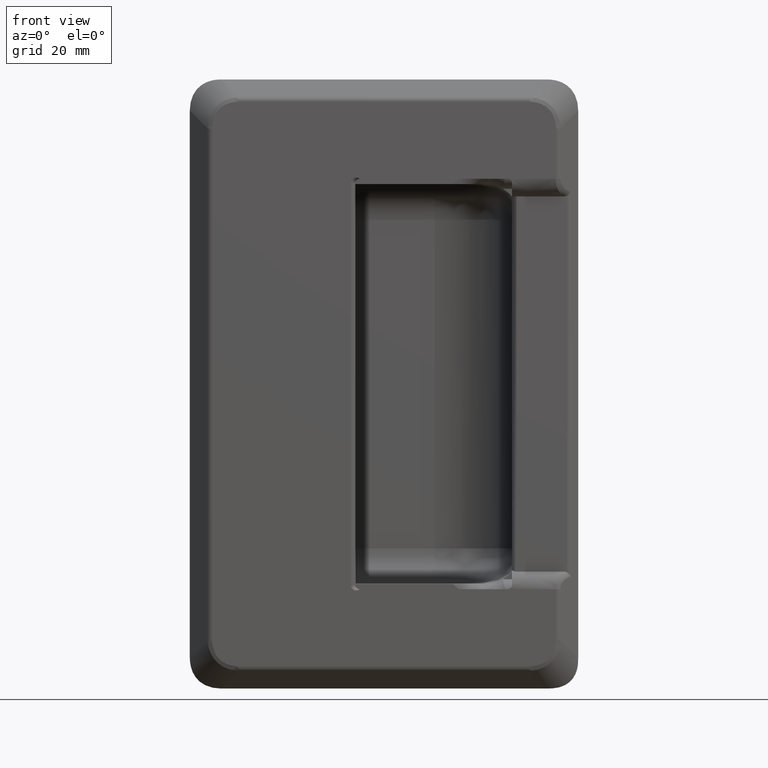
[diagram: clean part render]
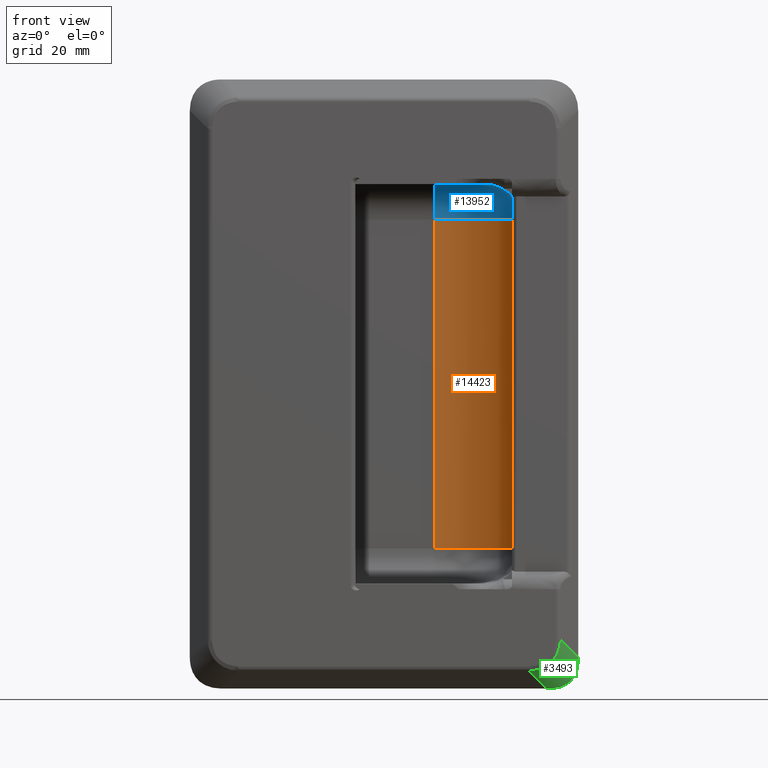
[diagram: same view with three faces highlighted in distinct colors, each labeled with its STEP entity id]
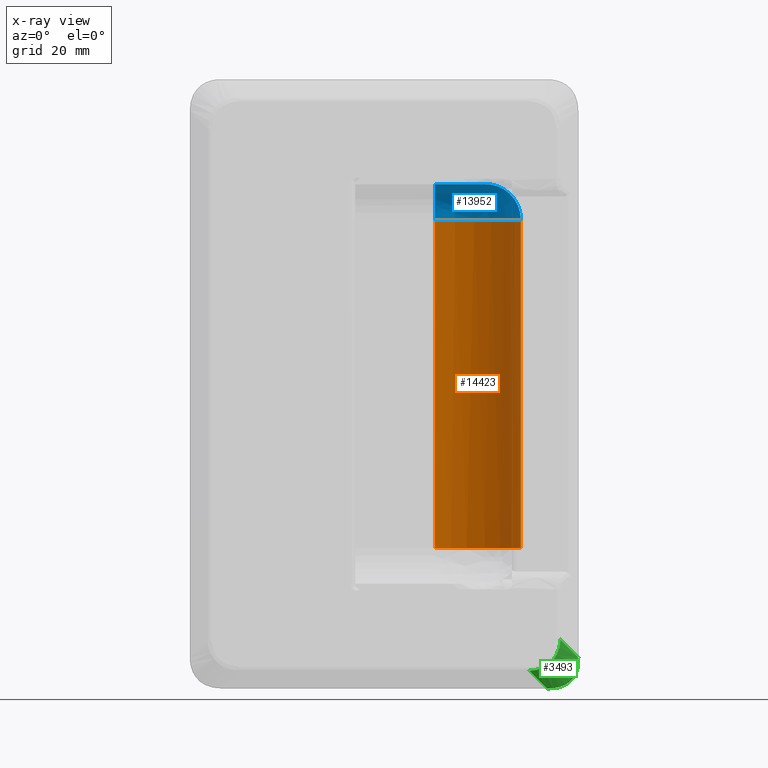
[diagram: x-ray of the same camera — body ghosted, the three highlighted faces saturated]
A machine part, front view with three faces highlighted in distinct colors.
The next image is the same camera in x-ray (body ghosted, the three faces saturated) — at least one of them is partly hidden behind the body in this view.
Their STEP definitions:

[orange] entity #14423 — the highlighted face is a freeform B-spline surface patch.
#13851=CARTESIAN_POINT('',(30.999999999512951,6.000000000162540,37.249999999966853));
#13852=VERTEX_POINT('',#13851);
#13900=CARTESIAN_POINT('',(11.499999999512960,25.500000000162501,37.249999999956891));
#13901=VERTEX_POINT('',#13900);
#13918=CARTESIAN_POINT('',(11.499999999512960,25.500000000162501,37.249999999956891));
#13919=CARTESIAN_POINT('',(13.215051111177200,25.500532260888910,37.249999999956863));
#13920=CARTESIAN_POINT('',(15.886937039796640,25.145123610949089,37.249999999957232));
#13921=CARTESIAN_POINT('',(19.245414878732671,23.966419696263230,37.249999999957488));
#13922=CARTESIAN_POINT('',(21.587298253000469,22.751375639999690,37.249999999958654));
#13923=CARTESIAN_POINT('',(23.555900358392091,21.382881773687441,37.249999999958511));
#13924=CARTESIAN_POINT('',(25.560853274295429,19.610141710692272,37.249999999960806));
#13925=CARTESIAN_POINT('',(27.216748572274309,17.654376201048152,37.249999999960593));
#13926=CARTESIAN_POINT('',(28.726375527720808,15.254048126577500,37.249999999962093));
#13927=CARTESIAN_POINT('',(29.866744121700059,12.784558390685129,37.249999999963457));
#13928=CARTESIAN_POINT('',(30.772046110546249,9.589440714130939,37.249999999965027));
#13929=CARTESIAN_POINT('',(31.000175508711230,7.276277328261594,37.249999999966157));
#13930=CARTESIAN_POINT('',(30.999999999512951,6.000000000162540,37.249999999966853));
#13931=B_SPLINE_CURVE_WITH_KNOTS('',3,(#13918,#13919,#13920,#13921,#13922,#13923,#13924,#13925,#13926,#13927,#13928,#13929,#13930),.UNSPECIFIED.,.F.,.U.,(4,1,1,1,1,1,1,1,1,1,4),(0.000000094483095,5.144966899626336,8.016596680881811,10.648928653391950,13.041967736172010,15.195695518127931,18.665479991663940,20.699551429892370,23.690841439743888,26.801785137441200,30.630576422912519),.UNSPECIFIED.);
#13932=EDGE_CURVE('',#13901,#13852,#13931,.T.);
#14219=CARTESIAN_POINT('',(11.499999999513200,25.500000000162551,-37.250000000208800));
#14220=VERTEX_POINT('',#14219);
#14314=CARTESIAN_POINT('',(30.999999999513200,6.000000000162540,-37.250000000191648));
#14315=VERTEX_POINT('',#14314);
#14332=CARTESIAN_POINT('',(30.999999999513200,6.000000000162540,-37.250000000191648));
#14333=CARTESIAN_POINT('',(31.000061019447930,7.036969885404043,-37.250000000191633));
#14334=CARTESIAN_POINT('',(30.827842336896001,9.190672010200057,-37.250000000191861));
#14335=CARTESIAN_POINT('',(30.088635912227929,12.141835860209939,-37.250000000192472));
#14336=CARTESIAN_POINT('',(28.970844358318459,14.794099823280440,-37.250000000193488));
#14337=CARTESIAN_POINT('',(27.486054880313620,17.306279979185899,-37.250000000194767));
#14338=CARTESIAN_POINT('',(25.548314747292359,19.652754759047159,-37.250000000196508));
#14339=CARTESIAN_POINT('',(23.282588880261329,21.619183451245160,-37.250000000198440));
#14340=CARTESIAN_POINT('',(20.765077617090238,23.246140343535380,-37.250000000200707));
#14341=CARTESIAN_POINT('',(18.133004793933310,24.422511376908162,-37.250000000203009));
#14342=CARTESIAN_POINT('',(14.929910525863360,25.287765758187799,-37.250000000205723));
#14343=CARTESIAN_POINT('',(12.776274241008171,25.500162465162280,-37.250000000207770));
#14344=CARTESIAN_POINT('',(11.499999999513200,25.500000000162551,-37.250000000208800));
#14345=B_SPLINE_CURVE_WITH_KNOTS('',3,(#14332,#14333,#14334,#14335,#14336,#14337,#14338,#14339,#14340,#14341,#14342,#14343,#14344),.UNSPECIFIED.,.F.,.U.,(4,1,1,1,1,1,1,1,1,1,4),(0.000000094485959,3.110910971584339,6.461134675721851,9.093459613997609,11.725799179651631,15.195695518127170,18.186889637144340,20.699551429891621,24.169444944374241,26.801785137441030,30.630576422912611),.UNSPECIFIED.);
#14346=EDGE_CURVE('',#14315,#14220,#14345,.T.);
#14395=CARTESIAN_POINT('',(10.989549507509670,25.493317837185899,-39.112500000213188));
#14396=CARTESIAN_POINT('',(10.989549507509420,25.493317837185899,39.159062499971299));
#14397=CARTESIAN_POINT('',(32.462203610330228,26.055599073404643,-39.112500000213124));
#14398=CARTESIAN_POINT('',(32.462203610329972,26.055599073404643,39.159062499971370));
#14399=CARTESIAN_POINT('',(30.951727347438986,4.628758525455845,-39.112500000213117));
#14400=CARTESIAN_POINT('',(30.951727347438748,4.628758525455845,39.159062499971370));
#14408=(BOUNDED_SURFACE()B_SPLINE_SURFACE(1,2,((#14395,#14397,#14399),(#14396,#14398,#14400)),.UNSPECIFIED.,.F.,.F.,.U.)B_SPLINE_SURFACE_WITH_KNOTS((2,2),(3,3),(0.0,78.271562500184487),(0.0,34.537275709723097),.UNSPECIFIED.)GEOMETRIC_REPRESENTATION_ITEM()RATIONAL_B_SPLINE_SURFACE(((1.0,0.670944223154768,0.996392648609106),(1.0,0.670944223154768,0.996392648609106)))REPRESENTATION_ITEM('')SURFACE());
#14409=CARTESIAN_POINT('',(11.499999999512960,25.500000000162501,37.249999999956891));
#14410=CARTESIAN_POINT('',(11.499999999513200,25.500000000162551,-37.250000000208800));
#14411=QUASI_UNIFORM_CURVE('',1,(#14409,#14410),.UNSPECIFIED.,.F.,.U.);
#14412=EDGE_CURVE('',#13901,#14220,#14411,.T.);
#14413=ORIENTED_EDGE('',*,*,#14412,.T.);
#14414=ORIENTED_EDGE('',*,*,#14346,.F.);
#14415=CARTESIAN_POINT('',(30.999999999513200,6.000000000162540,-37.250000000191648));
#14416=CARTESIAN_POINT('',(30.999999999512951,6.000000000162540,37.249999999966853));
#14417=QUASI_UNIFORM_CURVE('',1,(#14415,#14416),.UNSPECIFIED.,.F.,.U.);
#14418=EDGE_CURVE('',#14315,#13852,#14417,.T.);
#14419=ORIENTED_EDGE('',*,*,#14418,.T.);
#14420=ORIENTED_EDGE('',*,*,#13932,.F.);
#14421=EDGE_LOOP('',(#14413,#14414,#14419,#14420));
#14422=FACE_OUTER_BOUND('',#14421,.T.);
#14423=ADVANCED_FACE('',(#14422),#14408,.F.);

[blue] entity #13952 — the highlighted face is a freeform B-spline surface patch.
#13851=CARTESIAN_POINT('',(30.999999999512951,6.000000000162540,37.249999999966853));
#13852=VERTEX_POINT('',#13851);
#13859=CARTESIAN_POINT('',(22.999999999506102,6.000000000162540,45.249999999966803));
#13860=VERTEX_POINT('',#13859);
#13866=CARTESIAN_POINT('',(30.999999999512951,6.000000000162540,37.249999999966853));
#13867=CARTESIAN_POINT('',(31.000229323764071,6.000000000162531,37.937245108891382));
#13868=CARTESIAN_POINT('',(30.855670902235829,6.000000000162542,39.049764316514192));
#13869=CARTESIAN_POINT('',(30.312190363052711,6.000000000162541,40.598659975231392));
#13870=CARTESIAN_POINT('',(29.680079333954740,6.000000000162546,41.714490686730741));
#13871=CARTESIAN_POINT('',(28.819600897224799,6.000000000162505,42.789580024674343));
#13872=CARTESIAN_POINT('',(27.771988135243959,6.000000000162562,43.739191915417983));
#13873=CARTESIAN_POINT('',(26.468994337000940,6.000000000162519,44.509306836457903));
#13874=CARTESIAN_POINT('',(24.865188698104969,6.000000000162454,45.094249609779908));
#13875=CARTESIAN_POINT('',(23.719977295720462,6.000000000162667,45.250276227452510));
#13876=CARTESIAN_POINT('',(22.999999999506102,6.000000000162540,45.249999999966803));
#13877=B_SPLINE_CURVE_WITH_KNOTS('',3,(#13866,#13867,#13868,#13869,#13870,#13871,#13872,#13873,#13874,#13875,#13876),.UNSPECIFIED.,.F.,.U.,(4,1,1,1,1,1,1,1,4),(0.000000151694753,2.061663626102833,3.337967261619223,4.908777993941677,5.890541180441020,7.461291909608087,9.130305443472430,10.406610239708870,12.566449463013820),.UNSPECIFIED.);
#13878=EDGE_CURVE('',#13852,#13860,#13877,.T.);
#13883=CARTESIAN_POINT('',(10.739006045317131,16.917212021379765,45.230634898355333));
#13884=CARTESIAN_POINT('',(23.292246460289761,17.792246786914138,45.230634898366120));
#13885=CARTESIAN_POINT('',(22.417212041759147,5.239006347753305,45.230634898365381));
#13886=CARTESIAN_POINT('',(10.100891767193559,26.071593379717143,45.870297568051434));
#13887=CARTESIAN_POINT('',(33.180368167893619,27.680368767851597,45.870297568071230));
#13888=CARTESIAN_POINT('',(31.571593417735095,4.600892322680860,45.870297568069866));
#13889=CARTESIAN_POINT('',(10.145372071716876,25.433479354644714,36.693702981259534));
#13890=CARTESIAN_POINT('',(32.491108140789024,26.991108721686203,36.693702981278705));
#13891=CARTESIAN_POINT('',(30.933479391440986,4.645372609557187,36.693702981277376));
#13899=(BOUNDED_SURFACE()B_SPLINE_SURFACE(2,2,((#13883,#13886,#13889),(#13884,#13887,#13890),(#13885,#13888,#13891)),.UNSPECIFIED.,.F.,.F.,.U.)B_SPLINE_SURFACE_WITH_KNOTS((3,3),(3,3),(0.0,35.501002358308313),(0.0,14.578991912918500),.UNSPECIFIED.)GEOMETRIC_REPRESENTATION_ITEM()RATIONAL_B_SPLINE_SURFACE(((0.845035852041583,0.554533604994714,0.845035841399394),(0.554533604994714,0.363898784087685,0.554533598011044),(0.845035841399394,0.554533598011044,0.845035830757205)))REPRESENTATION_ITEM('')SURFACE());
#13900=CARTESIAN_POINT('',(11.499999999512960,25.500000000162501,37.249999999956891));
#13901=VERTEX_POINT('',#13900);
#13902=CARTESIAN_POINT('',(11.499999999506100,17.500000000162501,45.249999999956891));
#13903=VERTEX_POINT('',#13902);
#13904=CARTESIAN_POINT('',(11.499999999512960,25.500000000162501,37.249999999956891));
#13905=CARTESIAN_POINT('',(11.499999999512390,25.500185659052342,37.937239683420472));
#13906=CARTESIAN_POINT('',(11.499999999511401,25.355704336399690,39.049764798181300));
#13907=CARTESIAN_POINT('',(11.499999999510081,24.801317742680869,40.629645785753901));
#13908=CARTESIAN_POINT('',(11.499999999508811,23.981738042896030,42.056141455347031));
#13909=CARTESIAN_POINT('',(11.499999999507750,22.769958719544910,43.360660578074288));
#13910=CARTESIAN_POINT('',(11.499999999506970,21.462085181021859,44.246007338785581));
#13911=CARTESIAN_POINT('',(11.499999999506400,20.176214886521919,44.825451573234083));
#13912=CARTESIAN_POINT('',(11.499999999506359,18.907165676177922,45.168279202983548));
#13913=CARTESIAN_POINT('',(11.499999999505850,17.958146809346040,45.250032956132593));
#13914=CARTESIAN_POINT('',(11.499999999506100,17.500000000162501,45.249999999956891));
#13915=B_SPLINE_CURVE_WITH_KNOTS('',3,(#13904,#13905,#13906,#13907,#13908,#13909,#13910,#13911,#13912,#13913,#13914),.UNSPECIFIED.,.F.,.U.,(4,1,1,1,1,1,1,1,4),(0.000000151738785,2.061663626136397,3.337967261646000,5.006977195465556,6.970450242842445,8.639430360071879,9.719368839912487,11.192000324788561,12.566449463008130),.UNSPECIFIED.);
#13916=EDGE_CURVE('',#13901,#13903,#13915,.T.);
#13917=ORIENTED_EDGE('',*,*,#13916,.F.);
#13918=CARTESIAN_POINT('',(11.499999999512960,25.500000000162501,37.249999999956891));
#13919=CARTESIAN_POINT('',(13.215051111177200,25.500532260888910,37.249999999956863));
#13920=CARTESIAN_POINT('',(15.886937039796640,25.145123610949089,37.249999999957232));
#13921=CARTESIAN_POINT('',(19.245414878732671,23.966419696263230,37.249999999957488));
#13922=CARTESIAN_POINT('',(21.587298253000469,22.751375639999690,37.249999999958654));
#13923=CARTESIAN_POINT('',(23.555900358392091,21.382881773687441,37.249999999958511));
#13924=CARTESIAN_POINT('',(25.560853274295429,19.610141710692272,37.249999999960806));
#13925=CARTESIAN_POINT('',(27.216748572274309,17.654376201048152,37.249999999960593));
#13926=CARTESIAN_POINT('',(28.726375527720808,15.254048126577500,37.249999999962093));
#13927=CARTESIAN_POINT('',(29.866744121700059,12.784558390685129,37.249999999963457));
#13928=CARTESIAN_POINT('',(30.772046110546249,9.589440714130939,37.249999999965027));
#13929=CARTESIAN_POINT('',(31.000175508711230,7.276277328261594,37.249999999966157));
#13930=CARTESIAN_POINT('',(30.999999999512951,6.000000000162540,37.249999999966853));
#13931=B_SPLINE_CURVE_WITH_KNOTS('',3,(#13918,#13919,#13920,#13921,#13922,#13923,#13924,#13925,#13926,#13927,#13928,#13929,#13930),.UNSPECIFIED.,.F.,.U.,(4,1,1,1,1,1,1,1,1,1,4),(0.000000094483095,5.144966899626336,8.016596680881811,10.648928653391950,13.041967736172010,15.195695518127931,18.665479991663940,20.699551429892370,23.690841439743888,26.801785137441200,30.630576422912519),.UNSPECIFIED.);
#13932=EDGE_CURVE('',#13901,#13852,#13931,.T.);
#13933=ORIENTED_EDGE('',*,*,#13932,.T.);
#13934=ORIENTED_EDGE('',*,*,#13878,.T.);
#13935=CARTESIAN_POINT('',(22.999999999506102,6.000000000162540,45.249999999966803));
#13936=CARTESIAN_POINT('',(23.000228150682918,6.940855170930827,45.249999999966718));
#13937=CARTESIAN_POINT('',(22.808402298519791,8.493129996954124,45.249999999966732));
#13938=CARTESIAN_POINT('',(22.175026847157500,10.371283884538149,45.249999999966043));
#13939=CARTESIAN_POINT('',(21.442652574393399,11.848724845196511,45.249999999965453));
#13940=CARTESIAN_POINT('',(20.331574038464382,13.490118784505491,45.249999999964359));
#13941=CARTESIAN_POINT('',(18.703261811415050,15.078934584297160,45.249999999963322));
#13942=CARTESIAN_POINT('',(16.820004151692640,16.255142719635010,45.249999999961091));
#13943=CARTESIAN_POINT('',(15.251128535926201,16.904941191527008,45.249999999960089));
#13944=CARTESIAN_POINT('',(13.522751445815770,17.371883756557981,45.249999999958881));
#13945=CARTESIAN_POINT('',(12.299721224264230,17.500117777498492,45.249999999957573));
#13946=CARTESIAN_POINT('',(11.499999999506100,17.500000000162501,45.249999999956891));
#13947=B_SPLINE_CURVE_WITH_KNOTS('',3,(#13935,#13936,#13937,#13938,#13939,#13940,#13941,#13942,#13943,#13944,#13945,#13946),.UNSPECIFIED.,.F.,.U.,(4,1,1,1,1,1,1,1,1,4),(0.000000105079963,2.822519569076178,4.657196998617916,5.927357167111676,7.762034769421126,10.584504350867199,12.701428821907840,14.394977880571281,15.665129250536040,18.064271103066250),.UNSPECIFIED.);
#13948=EDGE_CURVE('',#13860,#13903,#13947,.T.);
#13949=ORIENTED_EDGE('',*,*,#13948,.T.);
#13950=EDGE_LOOP('',(#13917,#13933,#13934,#13949));
#13951=FACE_OUTER_BOUND('',#13950,.T.);
#13952=ADVANCED_FACE('',(#13951),#13899,.F.);

[green] entity #3493 — the highlighted face is a freeform B-spline surface patch.
#2393=CARTESIAN_POINT('',(39.999339828395001,0.439339828220191,-57.928272016543012));
#2394=VERTEX_POINT('',#2393);
#2537=CARTESIAN_POINT('',(32.928272016529512,0.439339828220178,-64.999339828408395));
#2538=VERTEX_POINT('',#2537);
#2547=CARTESIAN_POINT('',(39.999339828394987,0.439339828220178,-57.928272016543019));
#2548=CARTESIAN_POINT('',(39.645786437801682,0.085786437626910,-64.645786437815218));
#2549=CARTESIAN_POINT('',(32.928272016529469,0.439339828220184,-64.999339828408438));
#2557=(BOUNDED_CURVE()B_SPLINE_CURVE(2,(#2547,#2548,#2549),.UNSPECIFIED.,.F.,.U.)CURVE()GEOMETRIC_REPRESENTATION_ITEM()QUASI_UNIFORM_CURVE()RATIONAL_B_SPLINE_CURVE((1.0,0.866025403784439,1.0))REPRESENTATION_ITEM(''));
#2558=EDGE_CURVE('',#2394,#2538,#2557,.T.);
#3261=CARTESIAN_POINT('',(43.955631830843352,4.484368169331470,-63.298777581364412));
#3262=VERTEX_POINT('',#3261);
#3268=CARTESIAN_POINT('',(38.298777581350947,4.484368169331470,-68.955631830856802));
#3269=VERTEX_POINT('',#3268);
#3270=CARTESIAN_POINT('',(38.298777581350947,4.484368169331465,-68.955631830856802));
#3271=CARTESIAN_POINT('',(38.668256323363273,4.508377959527927,-68.931622040660343));
#3272=CARTESIAN_POINT('',(39.032971892561690,4.529145932194723,-68.883665883052956));
#3273=CARTESIAN_POINT('',(39.571692708365980,4.556050017897072,-68.770096250439266));
#3274=CARTESIAN_POINT('',(39.749868797698163,4.564304825613748,-68.725272809616669));
#3275=CARTESIAN_POINT('',(40.014819242634182,4.575646165401382,-68.646538125032066));
#3276=CARTESIAN_POINT('',(40.102749885718879,4.579252795845946,-68.618373852744881));
#3277=CARTESIAN_POINT('',(40.277794712835991,4.586118931216597,-68.557992335841220));
#3278=CARTESIAN_POINT('',(40.365105311258802,4.589384921234583,-68.525689941669995));
#3279=CARTESIAN_POINT('',(40.795420993968982,4.604700642844700,-68.355117307294861));
#3280=CARTESIAN_POINT('',(41.121976877584522,4.613836326005818,-68.189203912793019));
#3281=CARTESIAN_POINT('',(41.583071757982509,4.623111920490102,-67.892523111168913));
#3282=CARTESIAN_POINT('',(41.731965269947793,4.625459746302642,-67.785636034091397));
#3283=CARTESIAN_POINT('',(41.947659323439233,4.627838261376628,-67.612586333605392));
#3284=CARTESIAN_POINT('',(42.018281662650011,4.628440138039229,-67.552781065633582));
#3285=CARTESIAN_POINT('',(42.156884054579429,4.629251888585495,-67.428775337462085));
#3286=CARTESIAN_POINT('',(42.224610544666632,4.629459042346151,-67.364779342685182));
#3287=CARTESIAN_POINT('',(42.552198645178677,4.629505629941225,-67.038029818430985));
#3288=CARTESIAN_POINT('',(42.782263909875049,4.626432780436680,-66.752245764233137));
#3289=CARTESIAN_POINT('',(43.032259790788693,4.618771158613542,-66.366381799055091));
#3290=CARTESIAN_POINT('',(43.080371653847664,4.617045713073134,-66.287771212166774));
#3291=CARTESIAN_POINT('',(43.172850658170823,4.613201961335613,-66.127697361964621));
#3292=CARTESIAN_POINT('',(43.217274631318823,4.611080509962898,-66.046122464071530));
#3293=CARTESIAN_POINT('',(43.344586711393262,4.604132401358474,-65.797868033721684));
#3294=CARTESIAN_POINT('',(43.420690939403258,4.598773054478071,-65.629361166707398));
#3295=CARTESIAN_POINT('',(43.625059399331278,4.580539623624705,-65.115646328215945));
#3296=CARTESIAN_POINT('',(43.729507927667612,4.565532300594591,-64.762287683582841));
#3297=CARTESIAN_POINT('',(43.825609071302203,4.542930850597910,-64.308825838276718));
#3298=CARTESIAN_POINT('',(43.843078664983310,4.538218869044896,-64.217596537103319));
#3299=CARTESIAN_POINT('',(43.874510558892183,4.528446818310050,-64.034940101895089));
#3300=CARTESIAN_POINT('',(43.888498450126647,4.523381040624630,-63.943396603664560));
#3301=CARTESIAN_POINT('',(43.925515506956302,4.507630527039969,-63.668152094098033));
#3302=CARTESIAN_POINT('',(43.943606070655932,4.496393929518884,-63.483838038345979));
#3303=CARTESIAN_POINT('',(43.955631830843352,4.484368169331465,-63.298777581364412));
#3304=B_SPLINE_CURVE_WITH_KNOTS('',3,(#3270,#3271,#3272,#3273,#3274,#3275,#3276,#3277,#3278,#3279,#3280,#3281,#3282,#3283,#3284,#3285,#3286,#3287,#3288,#3289,#3290,#3291,#3292,#3293,#3294,#3295,#3296,#3297,#3298,#3299,#3300,#3301,#3302,#3303),.UNSPECIFIED.,.F.,.U.,(4,2,2,2,2,2,2,2,2,2,2,2,2,2,2,2,4),(0.0,0.125000000000004,0.187500000000007,0.218750000000009,0.250000000000011,0.375000000000013,0.437500000000013,0.468750000000012,0.500000000000010,0.625000000000018,0.656250000000019,0.687500000000020,0.750000000000020,0.875000000000019,0.906250000000015,0.937500000000012,1.0),.UNSPECIFIED.);
#3305=EDGE_CURVE('',#3269,#3262,#3304,.T.);
#3447=CARTESIAN_POINT('',(32.582437456847927,0.416529178761431,-64.971683022279151));
#3448=CARTESIAN_POINT('',(38.133968187415498,5.968059909328989,-70.523213752846715));
#3449=CARTESIAN_POINT('',(37.718767727618896,-2.268115976467690,-62.519997906737302));
#3450=CARTESIAN_POINT('',(43.270298458186467,3.283414754099867,-68.071528637304880));
#3451=CARTESIAN_POINT('',(40.062337188846996,0.519991427579323,-57.388321041462177));
#3452=CARTESIAN_POINT('',(45.613867919414567,6.071522158146886,-62.939851772029741));
#3460=(BOUNDED_SURFACE()B_SPLINE_SURFACE(1,2,((#3447,#3449,#3451),(#3448,#3450,#3452)),.UNSPECIFIED.,.F.,.F.,.U.)B_SPLINE_SURFACE_WITH_KNOTS((2,2),(3,3),(0.0,9.615533285122989),(0.0,11.538393801034950),.UNSPECIFIED.)GEOMETRIC_REPRESENTATION_ITEM()RATIONAL_B_SPLINE_SURFACE(((1.0,0.842884105280990,0.991793020281811),(1.0,0.842884105280990,0.991793020281811)))REPRESENTATION_ITEM('')SURFACE());
#3461=CARTESIAN_POINT('',(44.000000000174794,4.440000000000000,-61.928932188322797));
#3462=VERTEX_POINT('',#3461);
#3463=CARTESIAN_POINT('',(39.999339828395001,0.439339828220191,-57.928272016543012));
#3464=CARTESIAN_POINT('',(44.000000000174794,4.440000000000000,-61.928932188322797));
#3465=QUASI_UNIFORM_CURVE('',1,(#3463,#3464),.UNSPECIFIED.,.F.,.U.);
#3466=EDGE_CURVE('',#2394,#3462,#3465,.T.);
#3467=ORIENTED_EDGE('',*,*,#3466,.F.);
#3468=ORIENTED_EDGE('',*,*,#2558,.T.);
#3469=CARTESIAN_POINT('',(36.928932188309354,4.440000000000000,-69.000000000188209));
#3470=VERTEX_POINT('',#3469);
#3471=CARTESIAN_POINT('',(36.928932188309354,4.440000000000000,-69.000000000188209));
#3472=CARTESIAN_POINT('',(32.928272016529512,0.439339828220178,-64.999339828408395));
#3473=QUASI_UNIFORM_CURVE('',1,(#3471,#3472),.UNSPECIFIED.,.F.,.U.);
#3474=EDGE_CURVE('',#3470,#2538,#3473,.T.);
#3475=ORIENTED_EDGE('',*,*,#3474,.F.);
#3476=CARTESIAN_POINT('',(38.298777581350947,4.484368169331470,-68.955631830856802));
#3477=CARTESIAN_POINT('',(37.843441881129912,4.454802926070112,-68.985197074118190));
#3478=CARTESIAN_POINT('',(37.386182121643913,4.439990195375985,-69.000009804812137));
#3479=CARTESIAN_POINT('',(36.928932188309354,4.440000000000000,-69.000000000188209));
#3480=B_SPLINE_CURVE_WITH_KNOTS('',3,(#3476,#3477,#3478,#3479),.UNSPECIFIED.,.F.,.U.,(4,4),(3.681739E-010,1.371768510859438),.UNSPECIFIED.);
#3481=EDGE_CURVE('',#3269,#3470,#3480,.T.);
#3482=ORIENTED_EDGE('',*,*,#3481,.F.);
#3483=ORIENTED_EDGE('',*,*,#3305,.T.);
#3484=CARTESIAN_POINT('',(44.000000000174794,4.440000000000000,-61.928932188322797));
#3485=CARTESIAN_POINT('',(44.000021687554877,4.439978312619915,-62.386184432750632));
#3486=CARTESIAN_POINT('',(43.985211435540172,4.454788564634796,-62.843444208321039));
#3487=CARTESIAN_POINT('',(43.955631830843352,4.484368169331470,-63.298777581364412));
#3488=B_SPLINE_CURVE_WITH_KNOTS('',3,(#3484,#3485,#3486,#3487),.UNSPECIFIED.,.F.,.U.,(4,4),(3.693499E-010,1.371769386644681),.UNSPECIFIED.);
#3489=EDGE_CURVE('',#3462,#3262,#3488,.T.);
#3490=ORIENTED_EDGE('',*,*,#3489,.F.);
#3491=EDGE_LOOP('',(#3467,#3468,#3475,#3482,#3483,#3490));
#3492=FACE_OUTER_BOUND('',#3491,.T.);
#3493=ADVANCED_FACE('',(#3492),#3460,.T.);